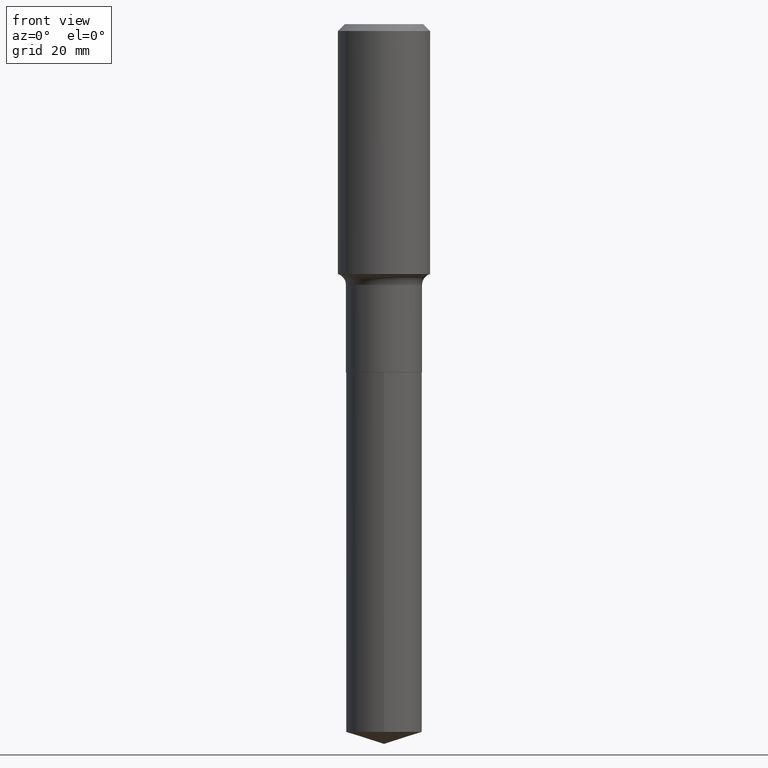
[diagram: clean part render]
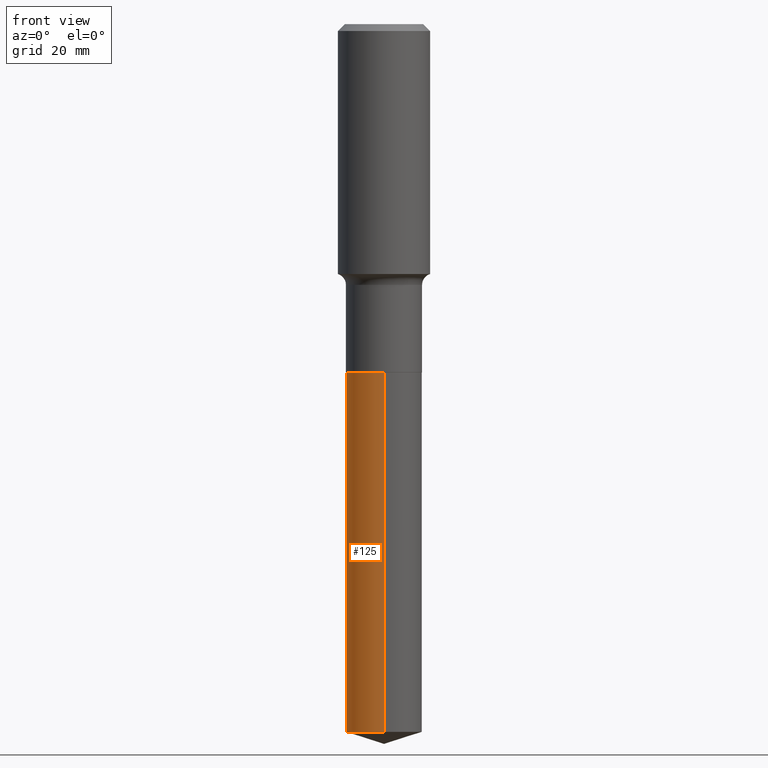
[diagram: same view with one face highlighted and labeled with its STEP entity id]
A machine part, front view. The second image highlights one B-rep face of the part: STEP entity #125.
In plain terms, the highlighted cylindrical surface (partial cylindrical patch) has radius 6.5481 mm, axis along (-0, 0, 1).
Its self-contained STEP definition (entity closure, byte-faithful):
#4 = LINE ( 'NONE', #356, #5 ) ;
#5 = VECTOR ( 'NONE', #423, 39.37007874015748143 ) ;
#10 = CARTESIAN_POINT ( 'NONE',  ( 1.831779172789656026E-15, 0.2577999999999917580, -2.359400000000000830 ) ) ;
#26 = EDGE_LOOP ( 'NONE', ( #440, #138, #172, #382 ) ) ;
#46 = CARTESIAN_POINT ( 'NONE',  ( -1.800207778307402021E-15, -0.2578000000000167380, -4.793715972226996413 ) ) ;
#49 = AXIS2_PLACEMENT_3D ( 'NONE', #389, #238, #314 ) ;
#57 = VERTEX_POINT ( 'NONE', #69 ) ;
#69 = CARTESIAN_POINT ( 'NONE',  ( -1.800207778307461580E-15, -0.2578000000000081893, -2.359399999999999054 ) ) ;
#71 = CIRCLE ( 'NONE', #154, 0.2577999999999999736 ) ;
#88 = CARTESIAN_POINT ( 'NONE',  ( 1.172252464947418916E-28, -1.673768286122179776E-14, -4.793715972226997302 ) ) ;
#112 = DIRECTION ( 'NONE',  ( -2.445321649315413865E-29, 3.491692075856237679E-15, 1.000000000000000000 ) ) ;
#125 = ADVANCED_FACE ( 'NONE', ( #486 ), #414, .T. ) ;
#138 = ORIENTED_EDGE ( 'NONE', *, *, #227, .T. ) ;
#139 = CARTESIAN_POINT ( 'NONE',  ( -1.800207778307461580E-15, -0.2578000000000081893, -2.359399999999999054 ) ) ;
#143 = DIRECTION ( 'NONE',  ( -2.445321649315413865E-29, 3.491692075856237679E-15, 1.000000000000000000 ) ) ;
#154 = AXIS2_PLACEMENT_3D ( 'NONE', #88, #236, #198 ) ;
#172 = ORIENTED_EDGE ( 'NONE', *, *, #406, .T. ) ;
#175 = CARTESIAN_POINT ( 'NONE',  ( 1.831779172789655238E-15, 0.2577999999999832648, -4.793715972226999078 ) ) ;
#178 = EDGE_CURVE ( 'NONE', #403, #234, #4, .T. ) ;
#198 = DIRECTION ( 'NONE',  ( -6.982962677686265922E-15, -1.000000000000000000, 4.238709066973255853E-15 ) ) ;
#217 = VERTEX_POINT ( 'NONE', #46 ) ;
#218 = DIRECTION ( 'NONE',  ( -6.982962677686265922E-15, -1.000000000000000000, 3.179031800229941890E-15 ) ) ;
#223 = CARTESIAN_POINT ( 'NONE',  ( 5.769839101313211634E-29, -8.237801070866517629E-15, -2.359399999999999942 ) ) ;
#227 = EDGE_CURVE ( 'NONE', #403, #217, #71, .T. ) ;
#234 = VERTEX_POINT ( 'NONE', #10 ) ;
#236 = DIRECTION ( 'NONE',  ( -2.445321649315413865E-29, 3.491692075856237679E-15, 1.000000000000000000 ) ) ;
#238 = DIRECTION ( 'NONE',  ( -2.445321649315413865E-29, 3.491692075856237679E-15, 1.000000000000000000 ) ) ;
#263 = EDGE_CURVE ( 'NONE', #234, #57, #265, .T. ) ;
#265 = CIRCLE ( 'NONE', #49, 0.2577999999999999736 ) ;
#314 = DIRECTION ( 'NONE',  ( -6.982962677686265922E-15, -1.000000000000000000, 3.179031800229941890E-15 ) ) ;
#333 = LINE ( 'NONE', #139, #340 ) ;
#340 = VECTOR ( 'NONE', #143, 39.37007874015748143 ) ;
#356 = CARTESIAN_POINT ( 'NONE',  ( 1.831779172789595679E-15, 0.2577999999999917580, -2.359400000000000830 ) ) ;
#367 = AXIS2_PLACEMENT_3D ( 'NONE', #223, #112, #218 ) ;
#382 = ORIENTED_EDGE ( 'NONE', *, *, #263, .F. ) ;
#389 = CARTESIAN_POINT ( 'NONE',  ( 5.769839101313211634E-29, -8.237801070866517629E-15, -2.359399999999999942 ) ) ;
#403 = VERTEX_POINT ( 'NONE', #175 ) ;
#406 = EDGE_CURVE ( 'NONE', #217, #57, #333, .T. ) ;
#414 = CYLINDRICAL_SURFACE ( 'NONE', #367, 0.2577999999999999736 ) ;
#423 = DIRECTION ( 'NONE',  ( -2.445321649315413865E-29, 3.491692075856237679E-15, 1.000000000000000000 ) ) ;
#440 = ORIENTED_EDGE ( 'NONE', *, *, #178, .F. ) ;
#486 = FACE_OUTER_BOUND ( 'NONE', #26, .T. ) ;